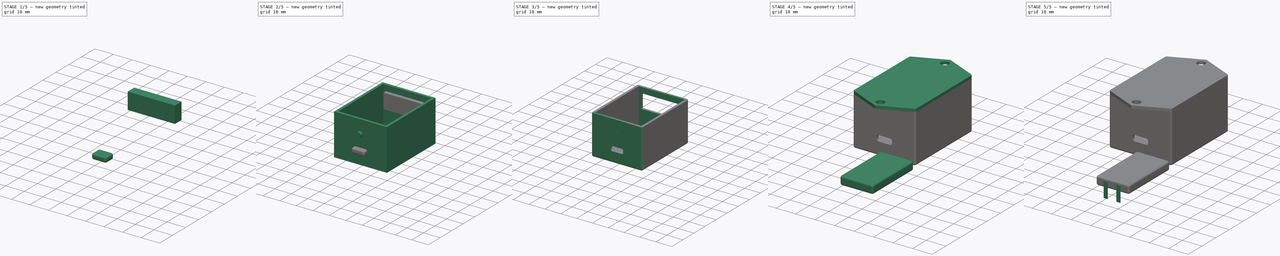
[diagram: build sequence overview — one tinted view per stage of 5, left to right]
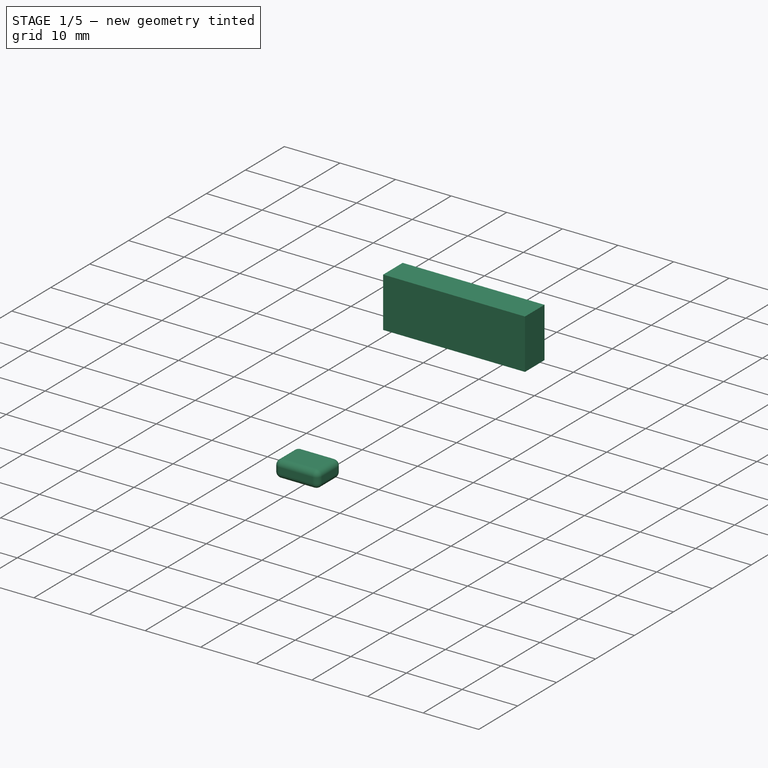
[diagram: stage 1 of 5 — iso view after this stage's code; geometry added in this stage tinted green]
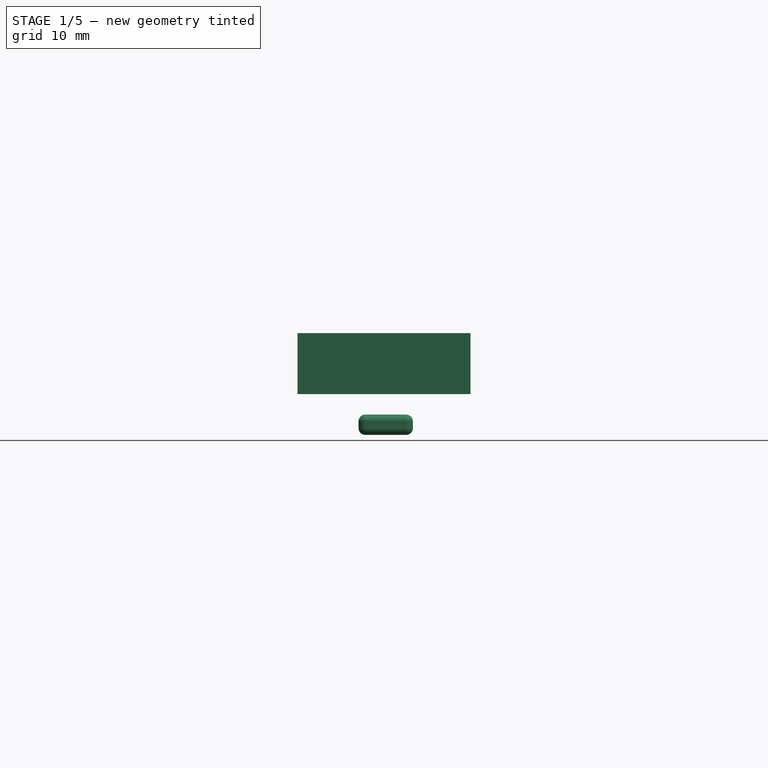
[diagram: stage 1 of 5 — front view after this stage's code; geometry added in this stage tinted green]
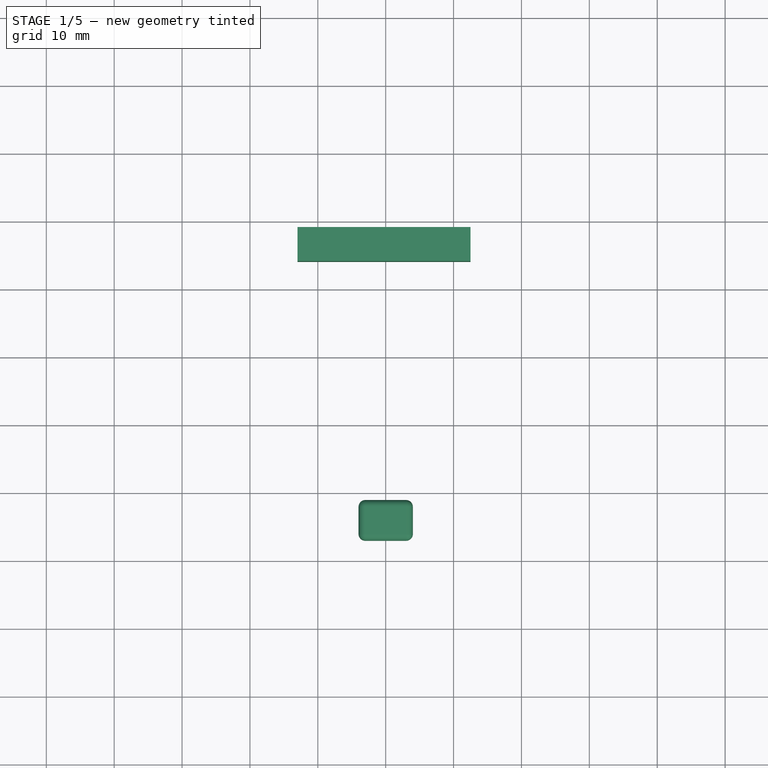
[diagram: stage 1 of 5 — top view after this stage's code; geometry added in this stage tinted green]
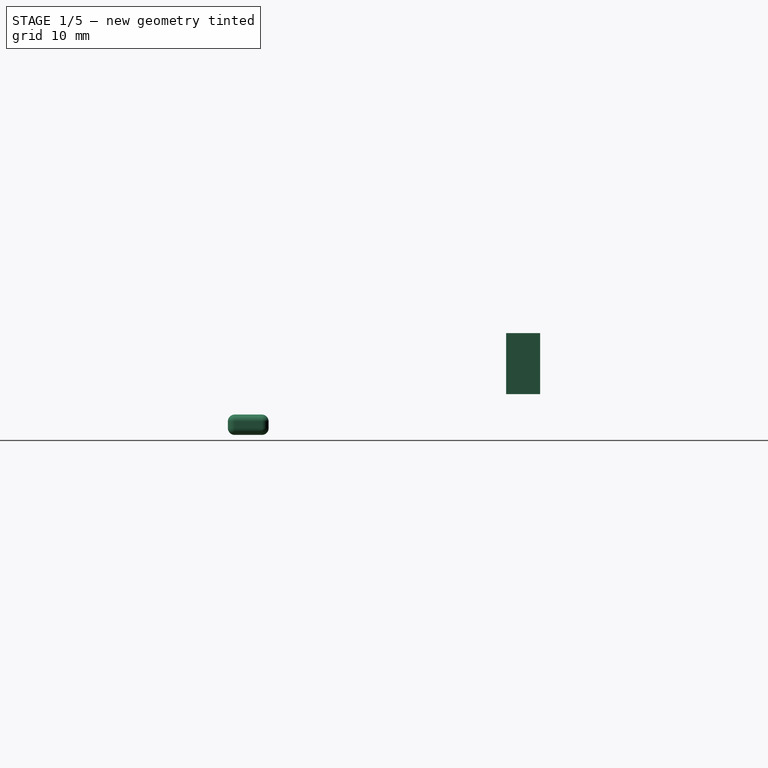
[diagram: stage 1 of 5 — right view after this stage's code; geometry added in this stage tinted green]
FCSTD DOCUMENT  (FreeCAD 0.17R13522 (Git))
Label: 3d_complete
License: All rights reserved
LicenseURL: http://en.wikipedia.org/wiki/All_rights_reserved
objects: Part::Box×5, Part::Fillet×4, Sketcher::SketchObject×3, App::VRMLObject×2, Part::MultiFuse×2, PartDesign::Pad×2, Part::Cylinder×2, App::Part×1, PartDesign::Pocket×1, PartDesign::Body×1, Part::Cut×1, App::DocumentObjectGroup×1
note: 24 computed .brp shape members not serialized (recipe doc carries the construction recipe); baked Part::Feature solids carry a one-line shape summary decoded from their .brp

FEATURE [Part::Box] Box003  label="Cubo"
  AttacherType = Attacher::AttachEngine3D
  Height = 3
  Length = 8
  Placement = pos=(26,-16,6.5) rot=(0,0,1;0rad)
  Width = 6
FEATURE [Part::Fillet] Fillet003
  Base = -> Box003
  Edges = 12 edges r=1: [Edge1,Edge2,Edge3,Edge4,Edge5,Edge6,Edge7,Edge8,Edge9,Edge10,Edge11,Edge12]
  Placement = pos=(0,-1,0) rot=(0,0,1;0rad)
FEATURE [Part::Box] Box004  label="Cubo001"
  AttacherType = Attacher::AttachEngine3D
  Height = 9
  Length = 25.5
  Placement = pos=(17,24,12.5) rot=(0,0,1;0rad)
  Width = 5
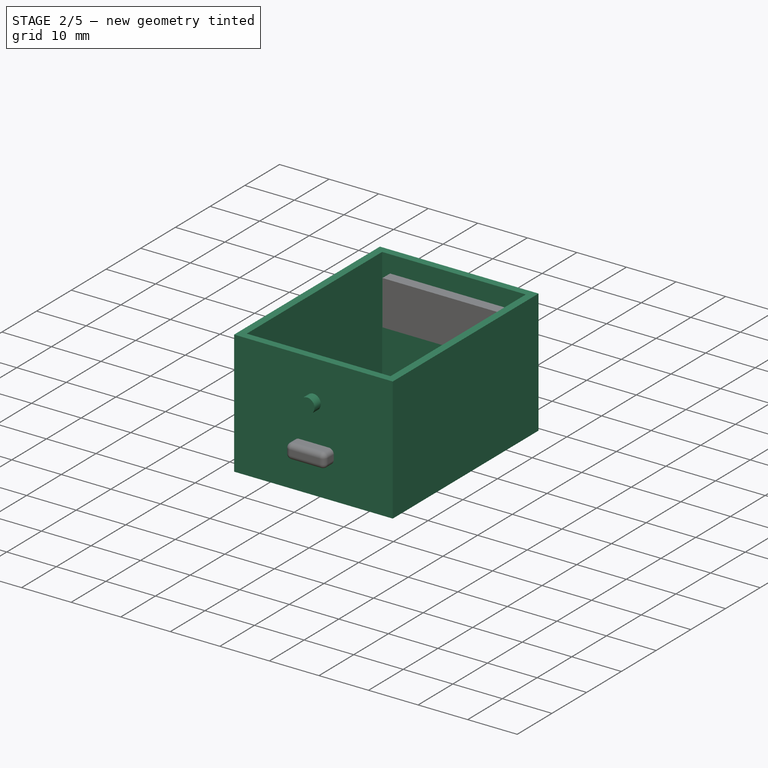
[diagram: stage 2 of 5 — iso view after this stage's code; geometry added in this stage tinted green]
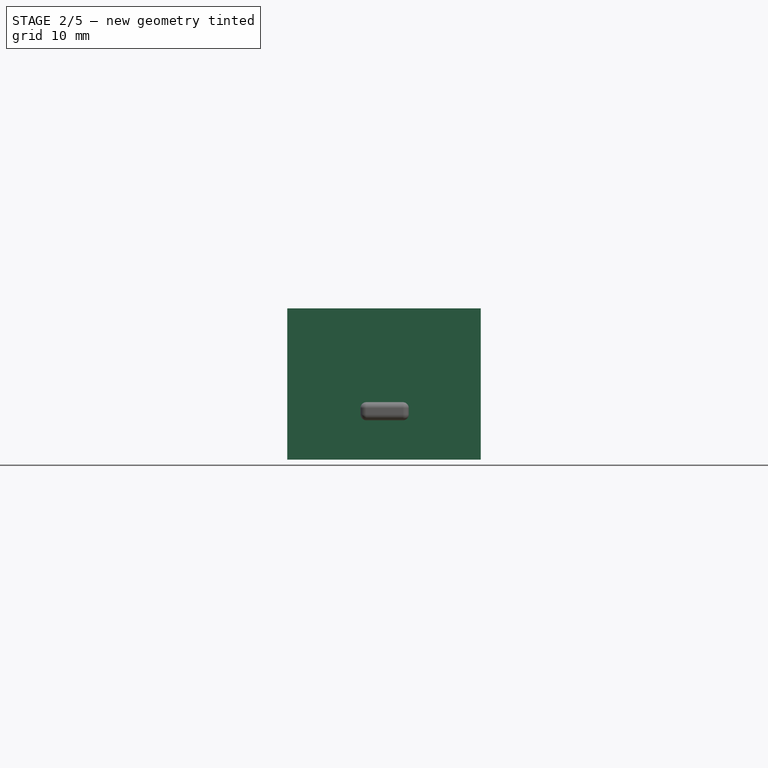
[diagram: stage 2 of 5 — front view after this stage's code; geometry added in this stage tinted green]
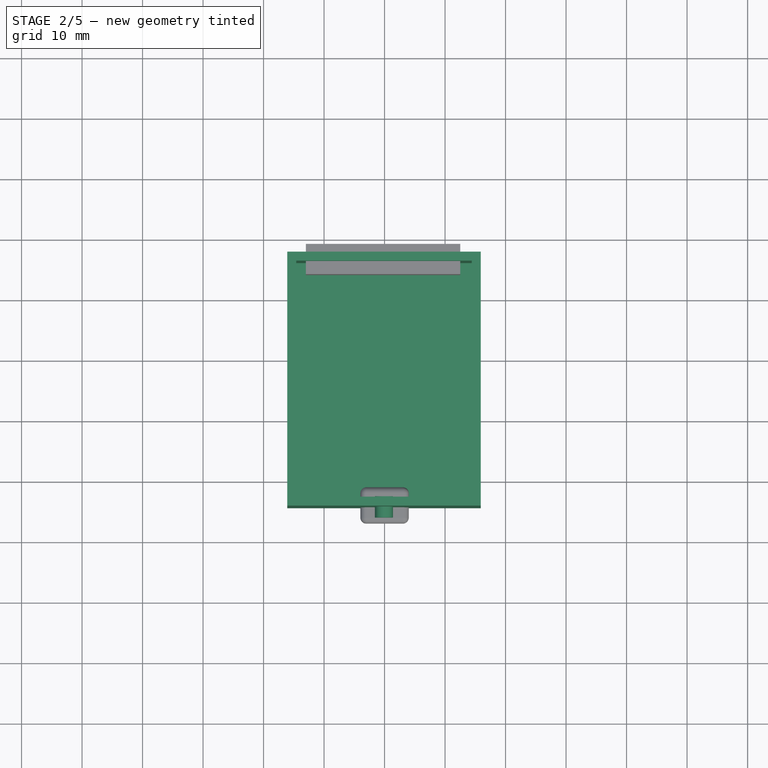
[diagram: stage 2 of 5 — top view after this stage's code; geometry added in this stage tinted green]
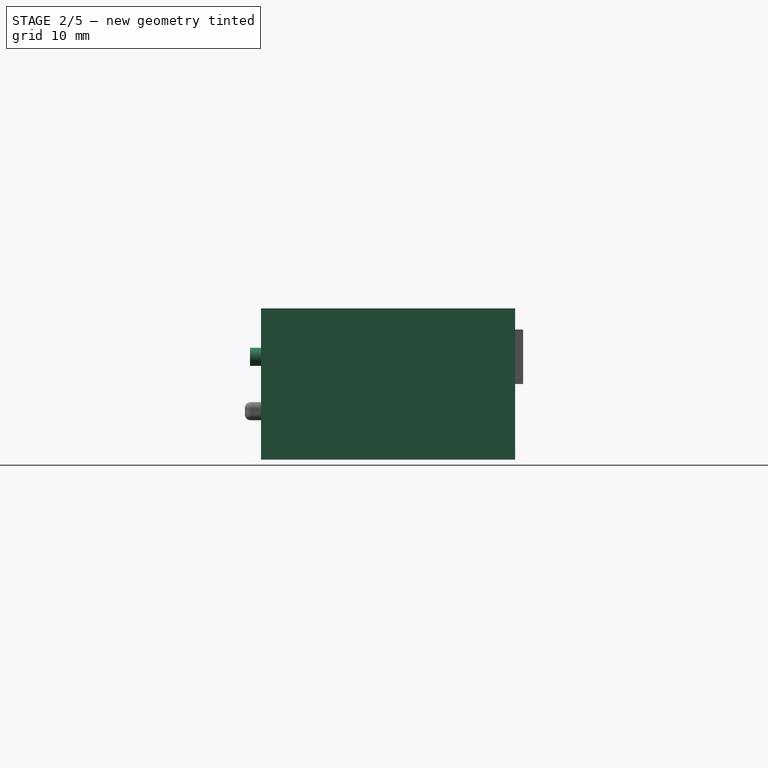
[diagram: stage 2 of 5 — right view after this stage's code; geometry added in this stage tinted green]
FEATURE [App::Part] Part  label="PCB"
  Group = -> [Datalogger_esp8266_complete_3d,Box002,Box001,Box,Fillet,Fusion]
  License = CC BY 3.0
  LicenseURL = http://creativecommons.org/licenses/by/3.0/
  Origin = -> Origin
  Placement = pos=(74.85,50.75,17) rot=(0,1,0;3.14159rad)
FEATURE [Sketcher::SketchObject] Sketch
  MapMode = 5
  Support = -> [XY_Plane001]
  sketch-geometry (4):
    g0: LineSegment StartX=13.9064 StartY=27.6692 StartZ=0 EndX=45.9064 EndY=27.6692 EndZ=0
    g1: LineSegment StartX=45.9064 StartY=27.6692 StartZ=0 EndX=45.9064 EndY=-14.3308 EndZ=0
    g2: LineSegment StartX=45.9064 StartY=-14.3308 StartZ=0 EndX=13.9064 EndY=-14.3308 EndZ=0
    g3: LineSegment StartX=13.9064 StartY=-14.3308 StartZ=0 EndX=13.9064 EndY=27.6692 EndZ=0
  constraints (10):
    c: Coincident(g0,g1)
    c: Coincident(g1,g2)
    c: Coincident(g2,g3)
    c: Coincident(g3,g0)
    c: Horizontal(g0)
    c: Horizontal(g2)
    c: Vertical(g1)
    c: Vertical(g3)
    c: DistanceY(g3,g3) = 42
    c: DistanceX(g0,g0) = 32
FEATURE [PartDesign::Pad] Pad  label="cabinet_external"
  Length = 25
  Length2 = 100
  Profile = -> Sketch
  Type = 0
FEATURE [Sketcher::SketchObject] Sketch001
  ExternalGeometry = -> [Pad]
  MapMode = 5
  Placement = pos=(0,0,25) rot=(0,0,1;0rad)
  Support = -> [Pad]
  sketch-geometry (4):
    g0: LineSegment StartX=15.4064 StartY=26.1692 StartZ=0 EndX=44.4064 EndY=26.1692 EndZ=0
    g1: LineSegment StartX=44.4064 StartY=26.1692 StartZ=0 EndX=44.4064 EndY=-12.8308 EndZ=0
    g2: LineSegment StartX=44.4064 StartY=-12.8308 StartZ=0 EndX=15.4064 EndY=-12.8308 EndZ=0
    g3: LineSegment StartX=15.4064 StartY=-12.8308 StartZ=0 EndX=15.4064 EndY=26.1692 EndZ=0
  constraints (13):
    c: Coincident(g0,g1)
    c: Coincident(g1,g2)
    c: Coincident(g2,g3)
    c: Coincident(g3,g0)
    c: Horizontal(g0)
    c: Horizontal(g2)
    c: Vertical(g1)
    c: Vertical(g3)
    c: DistanceX(g-4,g0) = 1.5
    c: DistanceY(g0,g-4) = 1.5
    c: DistanceX(g1,g-6) = 1.5
    c: DistanceY(g-6,g1) = 1.5
    c: DistanceX(g-6,g-6) = 0
FEATURE [PartDesign::Pocket] Pocket
  Length = 23.5
  Length2 = 100
  Profile = -> Sketch001
  Type = 0
FEATURE [Part::Cylinder] Cylinder  label="Cilindro"
  Angle = 360
  AttacherType = Attacher::AttachEngine3D
  Height = 3.5
  Placement = pos=(29.9,-12.65,17) rot=(1,0,0;1.5708rad)
  Radius = 1.5
FEATURE [Part::MultiFuse] Fusion001  label="Holes"
  Shapes = -> [Cylinder,Fillet003,Box004]
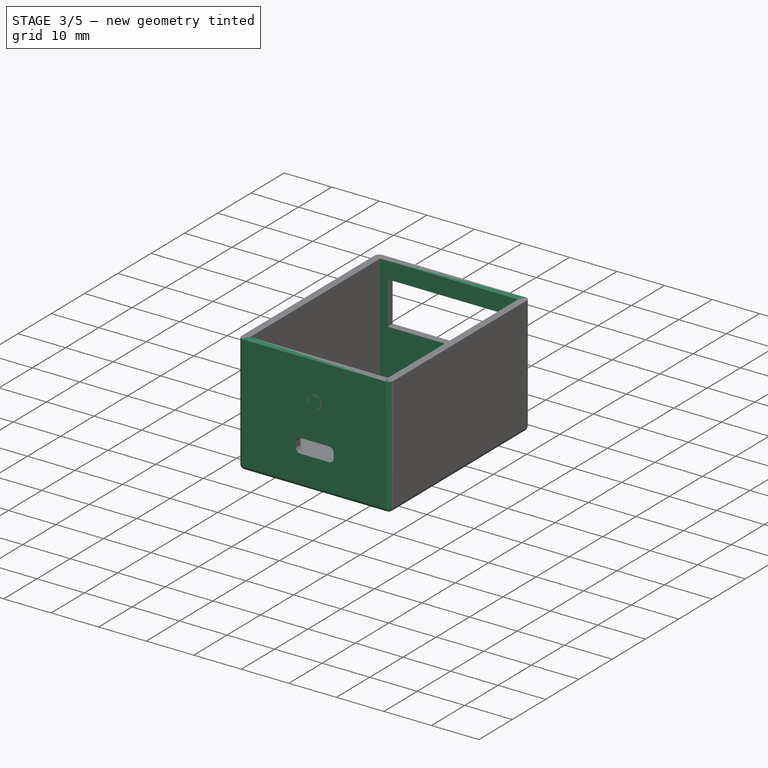
[diagram: stage 3 of 5 — iso view after this stage's code; geometry added in this stage tinted green]
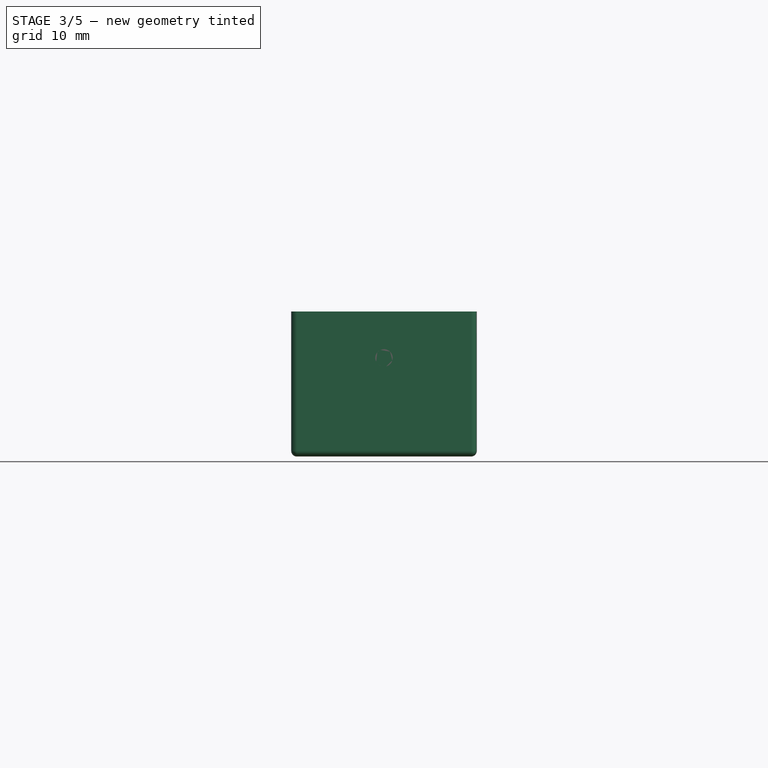
[diagram: stage 3 of 5 — front view after this stage's code; geometry added in this stage tinted green]
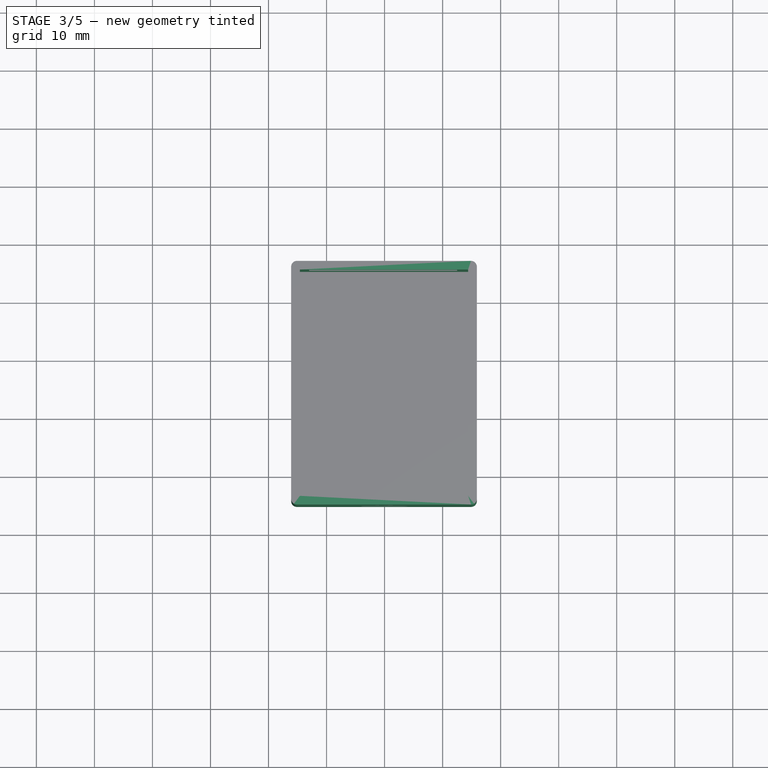
[diagram: stage 3 of 5 — top view after this stage's code; geometry added in this stage tinted green]
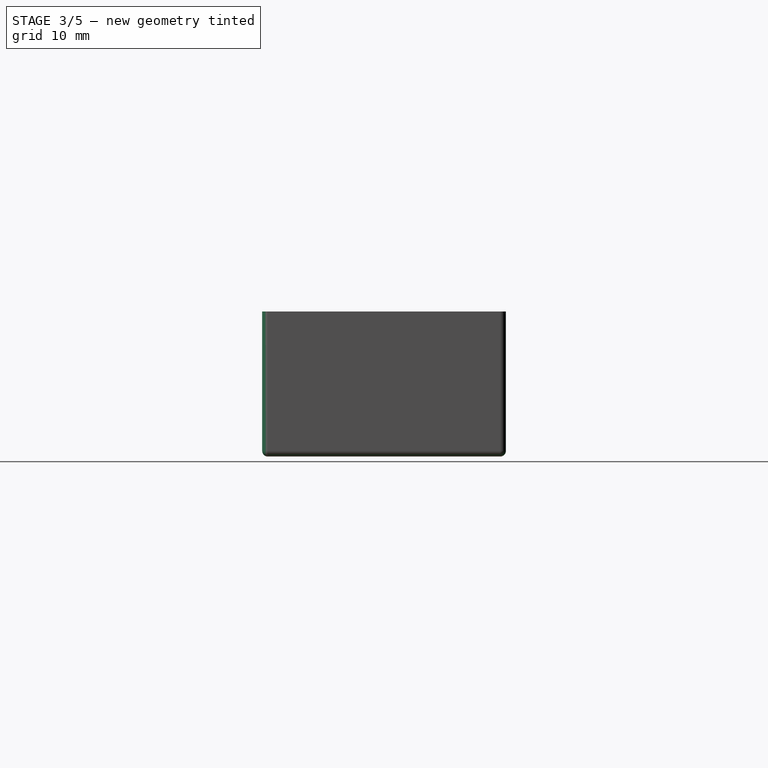
[diagram: stage 3 of 5 — right view after this stage's code; geometry added in this stage tinted green]
FEATURE [Part::Fillet] Fillet001  label="Cabinet_rounded"
  Base = -> Pocket
  Edges = 8 edges r=1: [Edge1,Edge2,Edge3,Edge5,Edge6,Edge8,Edge9,Edge11]
  Placement = pos=(-0.00550109,-0.803173,0) rot=(0,0,1;0rad)
FEATURE [Part::Cylinder] Cylinder001  label="LED_cover"
  Angle = 360
  AttacherType = Attacher::AttachEngine3D
  Height = 1.5
  Placement = pos=(29.9,-13.65,17) rot=(1,0,0;1.5708rad)
  Radius = 1.5
FEATURE [Part::Cut] Cut  label="Cabinet_drilled"
  Base = -> Fillet001
  Tool = -> Fusion001
FEATURE [App::DocumentObjectGroup] Group  label="Cabinet"
  Group = -> [Pad,Pocket,Sketch,Sketch001,Cut]
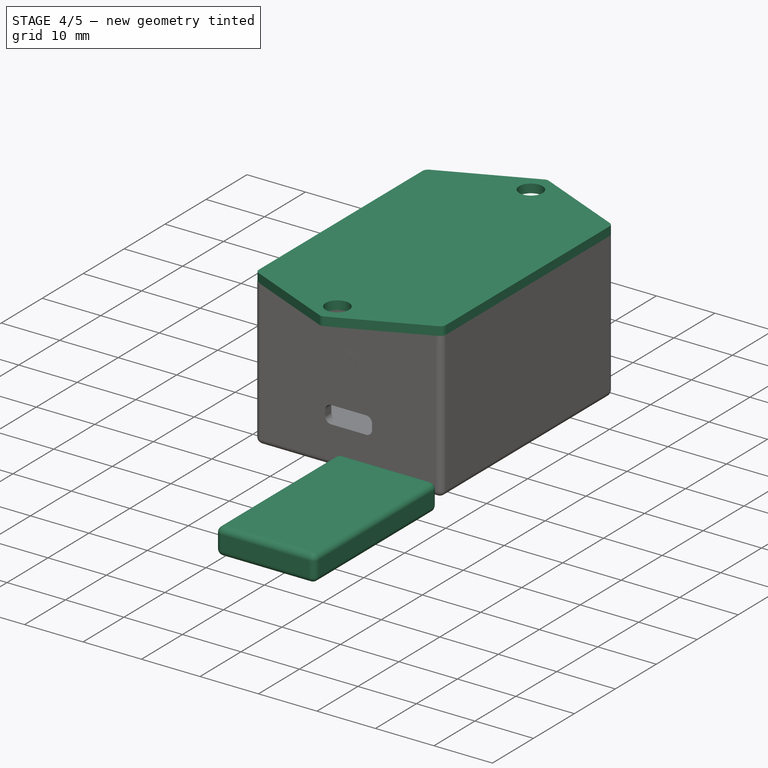
[diagram: stage 4 of 5 — iso view after this stage's code; geometry added in this stage tinted green]
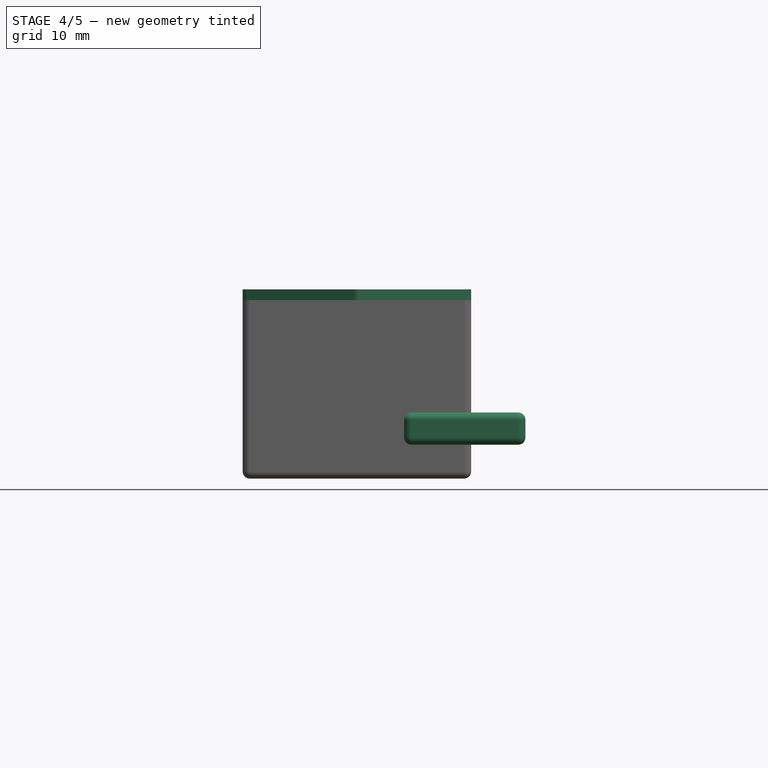
[diagram: stage 4 of 5 — front view after this stage's code; geometry added in this stage tinted green]
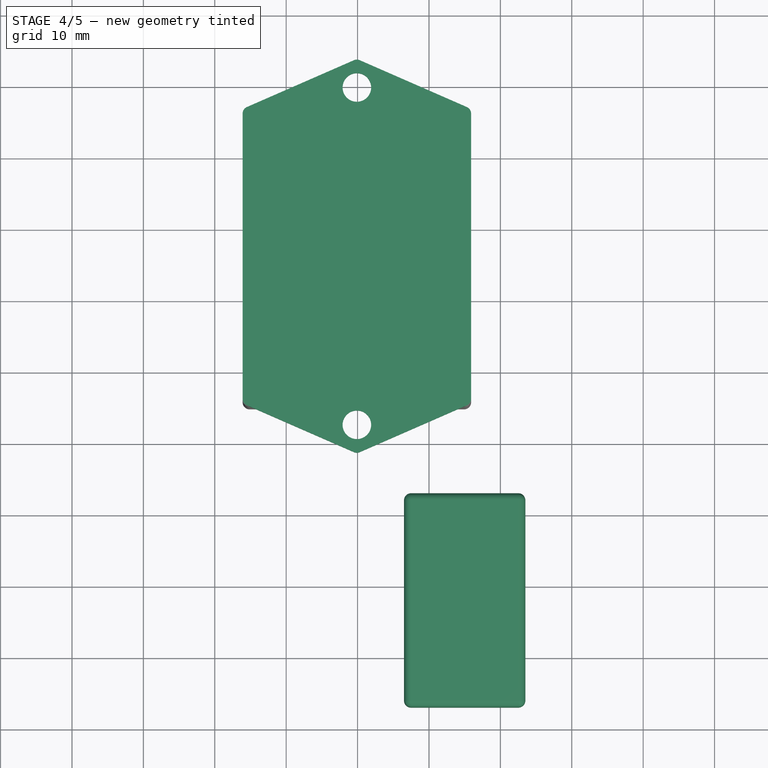
[diagram: stage 4 of 5 — top view after this stage's code; geometry added in this stage tinted green]
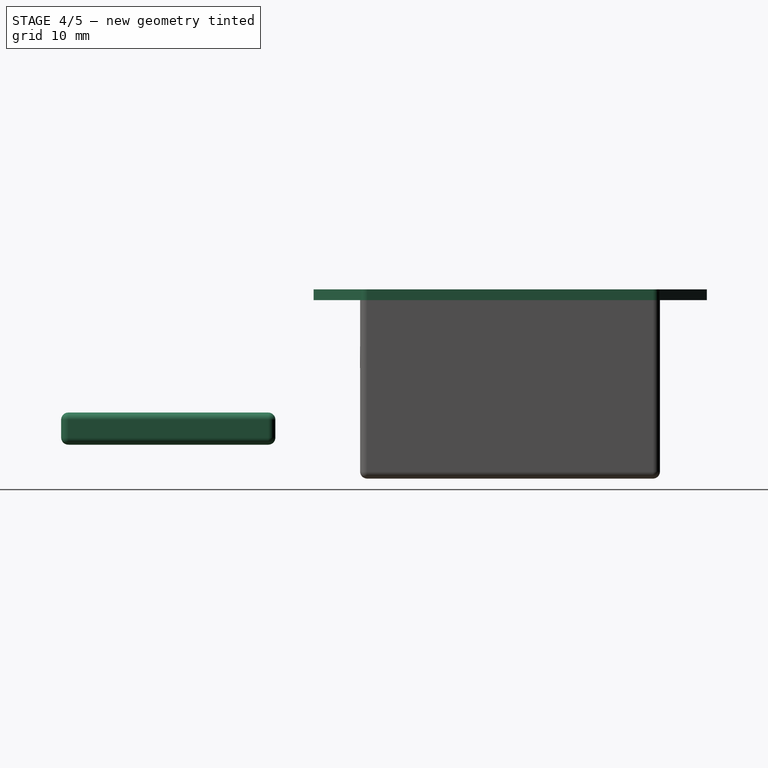
[diagram: stage 4 of 5 — right view after this stage's code; geometry added in this stage tinted green]
FEATURE [App::VRMLObject] Datalogger_esp8266_complete_3d
FEATURE [App::VRMLObject] Datalogger_esp8266_pcb_3d
FEATURE [Part::Box] Box  label="battery_body_raw"
  AttacherType = Attacher::AttachEngine3D
  Height = 4.5
  Length = 30
  Placement = pos=(53.5,-57,4.75) rot=(0,0,1;1.5708rad)
  Width = 17
FEATURE [Part::Fillet] Fillet  label="battery_body_rounded"
  Base = -> Box
  Edges = 12 edges r=1: [Edge1,Edge2,Edge3,Edge4,Edge5,Edge6,Edge7,Edge8,Edge9,Edge10,Edge11,Edge12]
FEATURE [Sketcher::SketchObject] Sketch002
  MapMode = 5
  Support = -> [XY_Plane001]
  sketch-geometry (11):
    g0: LineSegment StartX=91.4956 StartY=20.7987 StartZ=0 EndX=91.4956 EndY=-20.4513 EndZ=0
    g1: LineSegment StartX=59.4956 StartY=-20.4513 StartZ=0 EndX=59.4956 EndY=20.7987 EndZ=0
    g2: LineSegment StartX=59.4956 StartY=20.7987 StartZ=0 EndX=75.4956 EndY=27.7987 EndZ=0
    g3: LineSegment StartX=75.4956 StartY=27.7987 StartZ=0 EndX=91.4956 EndY=20.7987 EndZ=0
    g4: LineSegment StartX=59.4956 StartY=-20.4513 StartZ=0 EndX=75.4956 EndY=-27.4513 EndZ=0
    g5: LineSegment StartX=75.4956 StartY=-27.4513 StartZ=0 EndX=91.4956 EndY=-20.4513 EndZ=0
    g6: LineSegment [constr] StartX=75.4956 StartY=27.7987 StartZ=0 EndX=75.4956 EndY=-27.4513 EndZ=0
    g7: LineSegment [constr] StartX=59.4956 StartY=20.7987 StartZ=0 EndX=91.4956 EndY=20.7987 EndZ=0
    g8: LineSegment [constr] StartX=59.4956 StartY=-20.4513 StartZ=0 EndX=91.4956 EndY=-20.4513 EndZ=0
    g9: Circle CenterX=75.4956 CenterY=23.7987 CenterZ=0 NormalX=0 NormalY=0 NormalZ=1 AngleXU=0 Radius=2
    g10: Circle CenterX=75.4956 CenterY=-23.4513 CenterZ=0 NormalX=0 NormalY=0 NormalZ=1 AngleXU=0 Radius=2
  constraints (30):
    c: Vertical(g1)
    c: Coincident(g1,g2)
    c: Coincident(g2,g3)
    c: Coincident(g3,g0)
    c: Coincident(g1,g4)
    c: Coincident(g4,g5)
    c: Coincident(g5,g0)
    c: DistanceX(g1,g0) = 32
    c: DistanceY(g0,g2) = 7
    c: DistanceY(g4,g0) = 7
    c: Coincident(g6,g2)
    c: Coincident(g6,g4)
    c: Vertical(g6)
    c: Equal(g0,g1)
    c: DistanceY(g0,g0) = 41.25
    c: Coincident(g7,g1)
    c: Coincident(g7,g0)
    c: Horizontal(g7)
    c: Coincident(g8,g1)
    c: Coincident(g8,g0)
    c: Equal(g2,g3)
    c: Equal(g3,g4)
    c: Equal(g4,g5)
    c: Equal(g7,g8)
    c: PointOnObject(g9,g6)
    c: PointOnObject(g10,g6)
    c: DistanceY(g9,g2) = 4
    c: Radius(g9) = 2
    c: DistanceY(g4,g10) = 4
    c: Radius(g10) = 2
FEATURE [PartDesign::Pad] Pad001
  Length = 1.5
  Length2 = 100
  Profile = -> Sketch002
  Type = 0
FEATURE [PartDesign::Body] Body
  Group = -> [Sketch002,Pad001]
  Origin = -> Origin001
  Tip = -> Pad001
FEATURE [Part::Fillet] Fillet002  label="Cabinet_cover"
  Base = -> Pad001
  Edges = 6 edges r=1: [Edge1,Edge2,Edge5,Edge8,Edge11,Edge14]
  Placement = pos=(-45.5963,5.72132,25) rot=(0,0,1;0rad)
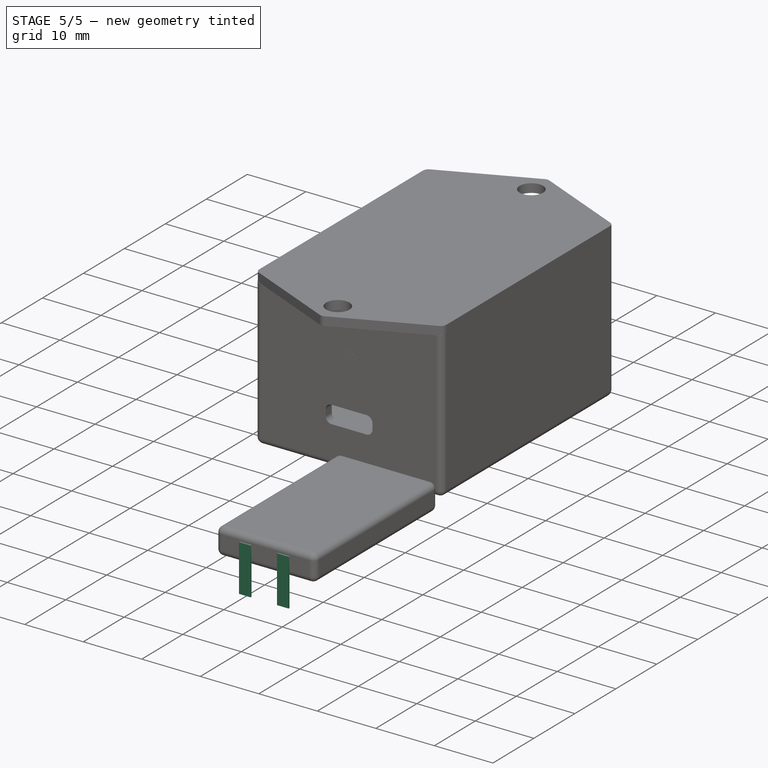
[diagram: stage 5 of 5 — iso view after this stage's code; geometry added in this stage tinted green]
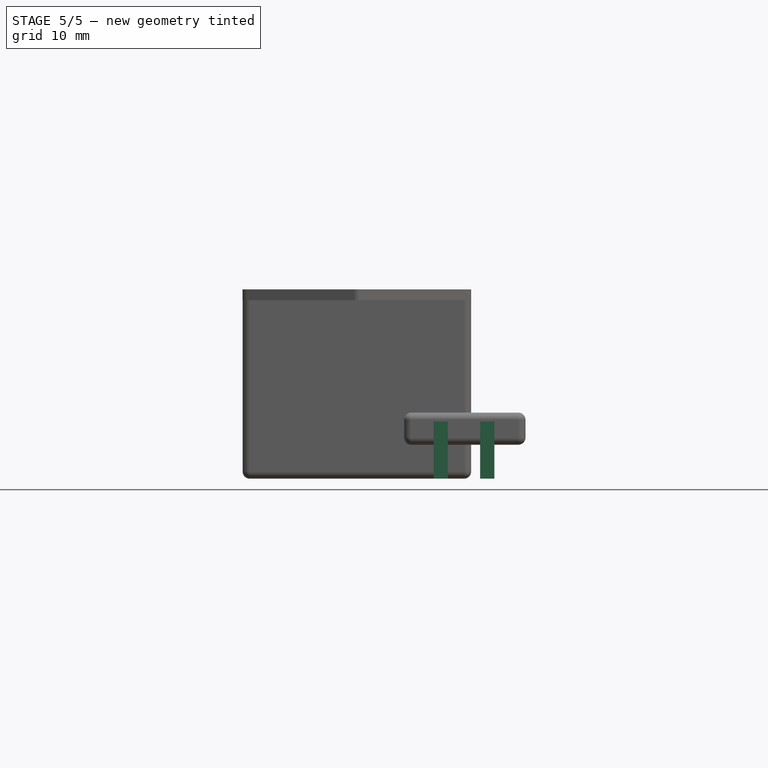
[diagram: stage 5 of 5 — front view after this stage's code; geometry added in this stage tinted green]
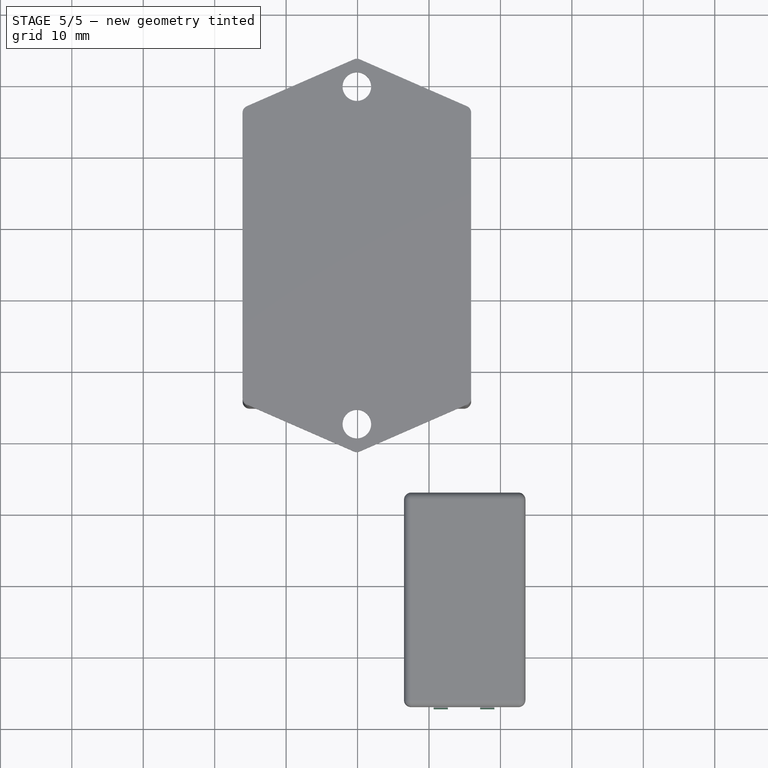
[diagram: stage 5 of 5 — top view after this stage's code; geometry added in this stage tinted green]
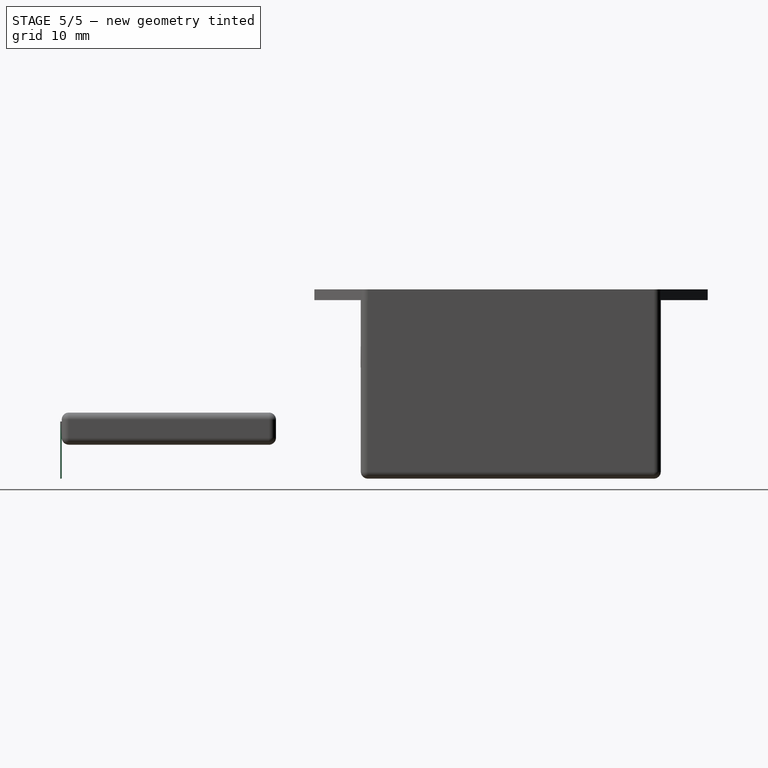
[diagram: stage 5 of 5 — right view after this stage's code; geometry added in this stage tinted green]
FEATURE [Part::Box] Box001  label="terminal_1"
  AttacherType = Attacher::AttachEngine3D
  Height = 0.2
  Length = 8
  Placement = pos=(42.65,-57,0) rot=(0.57735,-0.57735,0.57735;2.0944rad)
  Width = 2
FEATURE [Part::Box] Box002  label="terminal_2"
  AttacherType = Attacher::AttachEngine3D
  Height = 0.2
  Length = 8
  Placement = pos=(49.15,-57,0) rot=(0.57735,-0.57735,0.57735;2.0944rad)
  Width = 2
FEATURE [Part::MultiFuse] Fusion  label="Battery"
  Shapes = -> [Fillet,Box002,Box001]
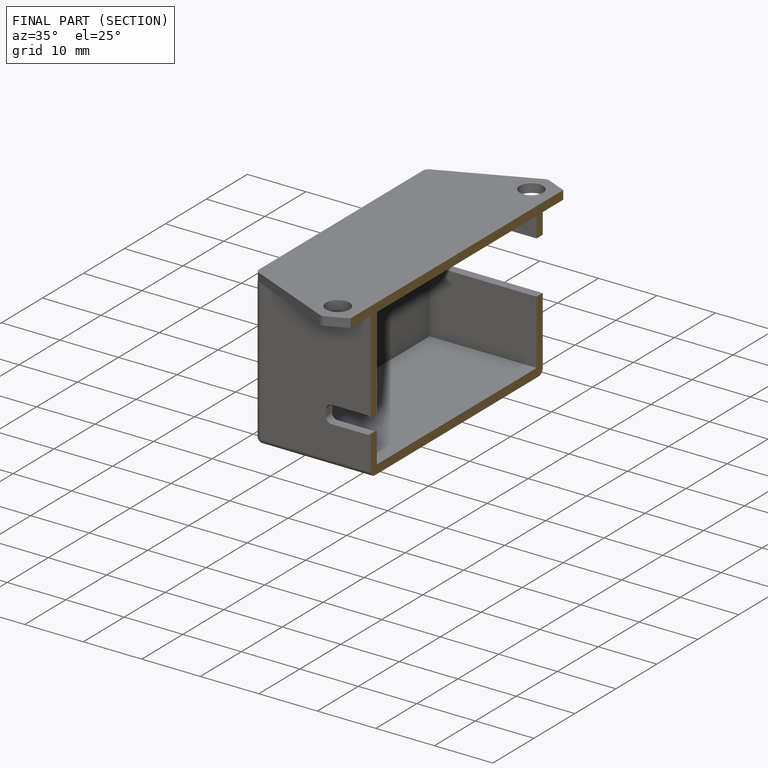
[diagram: finished part — half-section view (interior)]
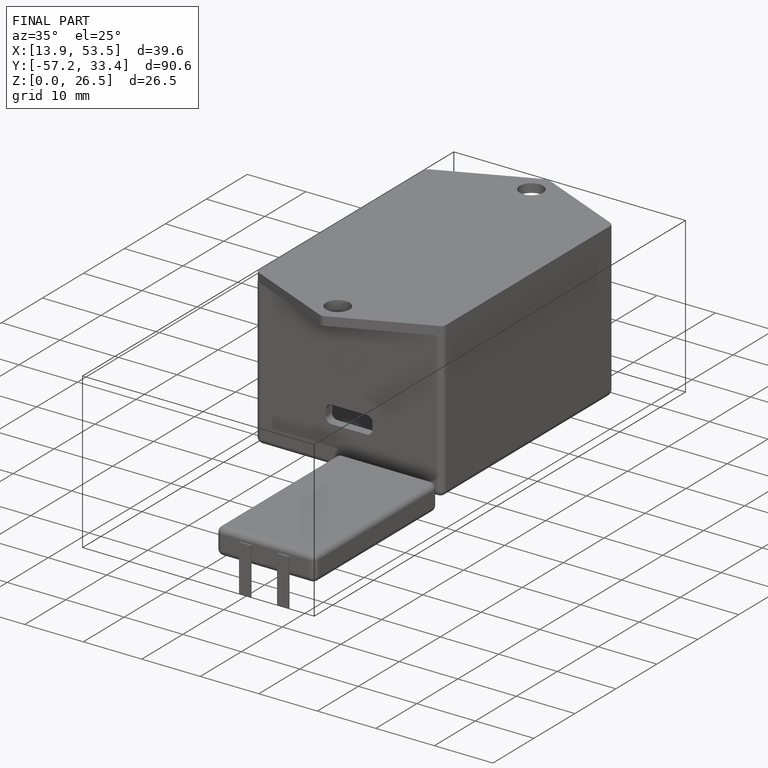
[diagram: finished part — iso view with bounding-box wireframe]
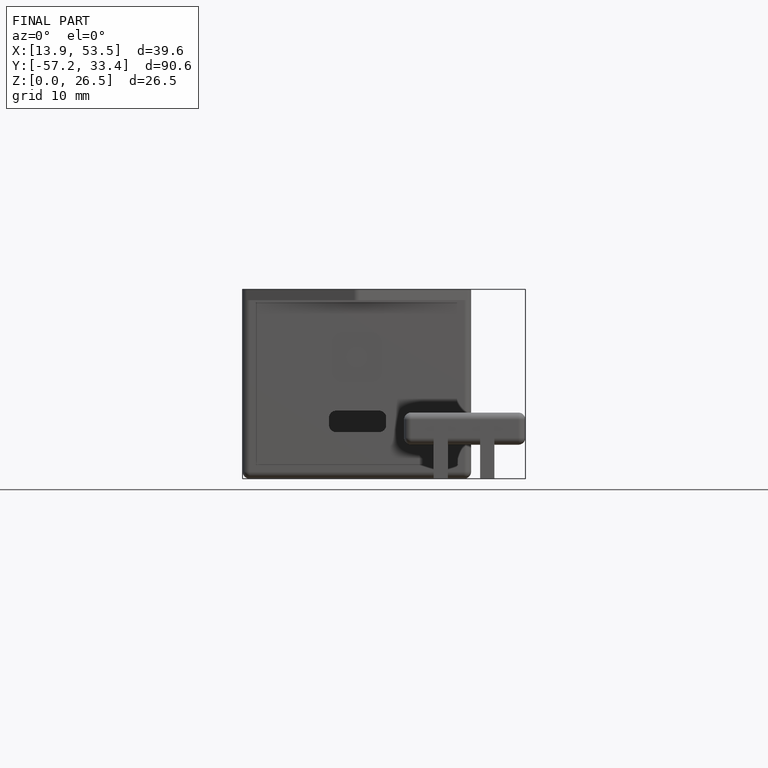
[diagram: finished part — front view with bounding-box wireframe]
